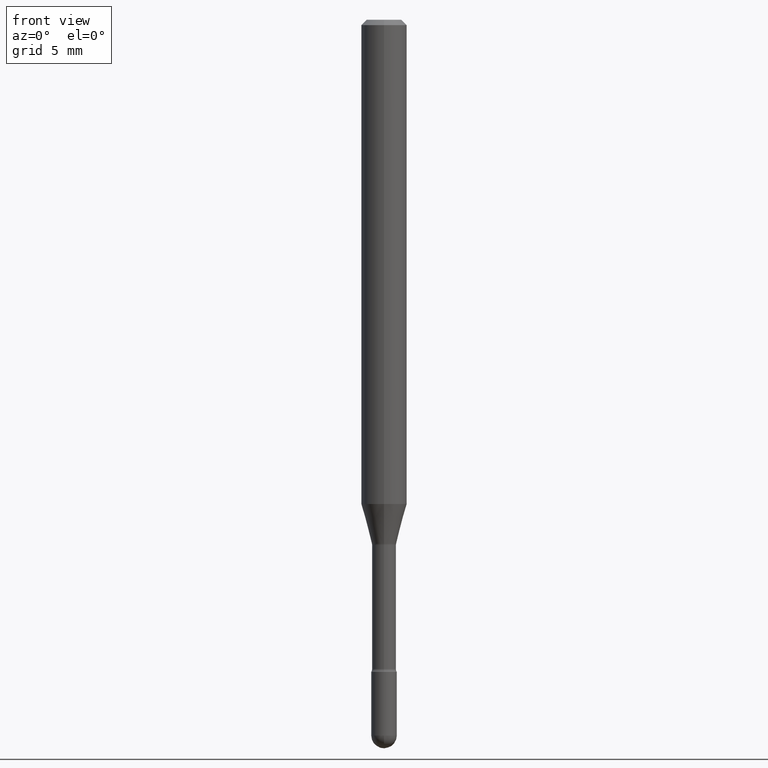
[diagram: clean part render]
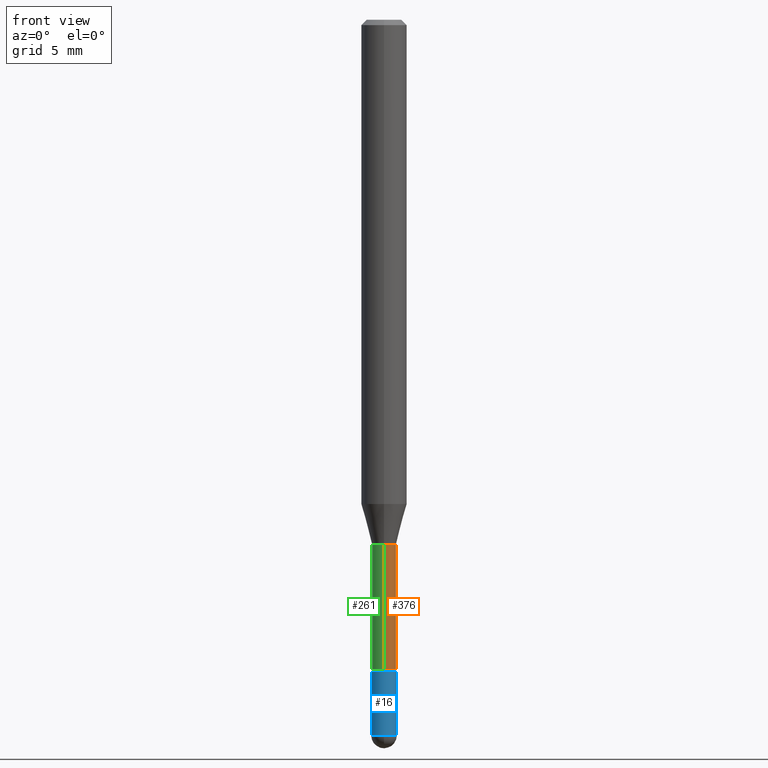
[diagram: same view with three faces highlighted in distinct colors, each labeled with its STEP entity id]
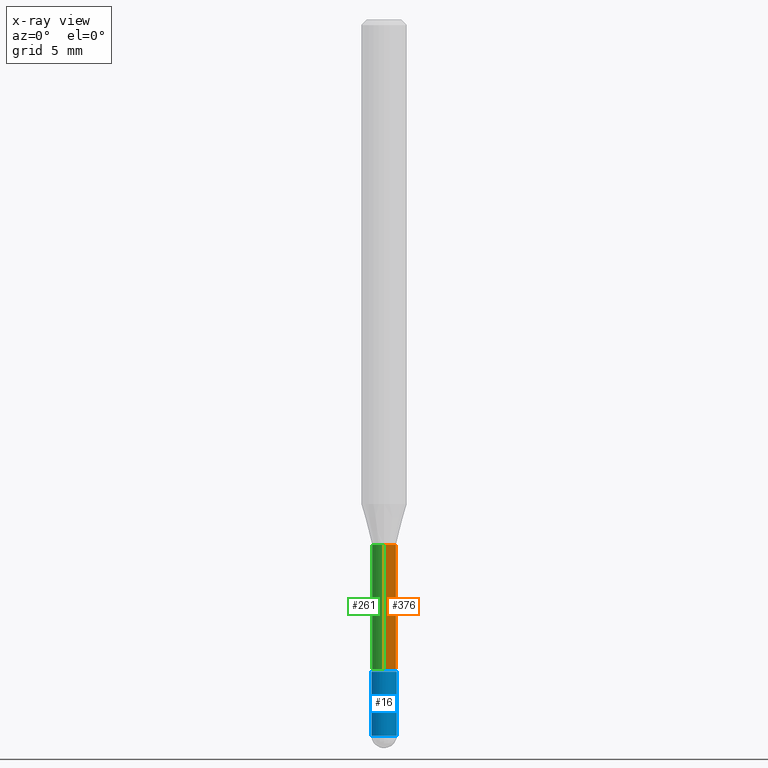
[diagram: x-ray of the same camera — body ghosted, the three highlighted faces saturated]
A machine part, front view with three faces highlighted in distinct colors.
The next image is the same camera in x-ray (body ghosted, the three faces saturated) — at least one of them is partly hidden behind the body in this view.
Their STEP definitions:

[orange] entity #376 — the highlighted cylindrical surface (edge-blend (fillet) strip) has radius 0.8357 mm, axis along (-0, 0, 1).
#6 = ORIENTED_EDGE ( 'NONE', *, *, #410, .F. ) ;
#11 = EDGE_CURVE ( 'NONE', #330, #320, #337, .T. ) ;
#33 = DIRECTION ( 'NONE',  ( -2.445521858214685892E-29, 3.491405365317297324E-15, 1.000000000000000000 ) ) ;
#70 = CARTESIAN_POINT ( 'NONE',  ( -2.297394720958428512E-16, -0.03290000000000502939, -1.441974787463810914 ) ) ;
#72 = ORIENTED_EDGE ( 'NONE', *, *, #230, .F. ) ;
#94 = FACE_OUTER_BOUND ( 'NONE', #340, .T. ) ;
#113 = CARTESIAN_POINT ( 'NONE',  ( -2.297394720958780541E-16, -0.03289999999999998481, 5.929406354101851004E-16 ) ) ;
#119 = DIRECTION ( 'NONE',  ( -6.982962677686265922E-15, -1.000000000000000000, 3.491405365317296141E-15 ) ) ;
#126 = ORIENTED_EDGE ( 'NONE', *, *, #11, .T. ) ;
#135 = ORIENTED_EDGE ( 'NONE', *, *, #243, .T. ) ;
#144 = CARTESIAN_POINT ( 'NONE',  ( -1.169113584055446105E-44, 1.669184350826100908E-30, 4.780733988912460139E-16 ) ) ;
#176 = CARTESIAN_POINT ( 'NONE',  ( 2.337685600651165364E-16, 0.03289999999999496105, -1.441974787463810914 ) ) ;
#193 = AXIS2_PLACEMENT_3D ( 'NONE', #144, #510, #119 ) ;
#195 = VERTEX_POINT ( 'NONE', #176 ) ;
#215 = CARTESIAN_POINT ( 'NONE',  ( 3.526380861737225487E-29, -5.034518509603418208E-15, -1.441974787463810914 ) ) ;
#221 = CARTESIAN_POINT ( 'NONE',  ( -2.297394720958343216E-16, -0.03290000000000618818, -1.782345589506695971 ) ) ;
#230 = EDGE_CURVE ( 'NONE', #403, #195, #481, .T. ) ;
#234 = LINE ( 'NONE', #113, #507 ) ;
#243 = EDGE_CURVE ( 'NONE', #320, #195, #495, .T. ) ;
#268 = DIRECTION ( 'NONE',  ( -2.445521858214685892E-29, 3.491405365317297324E-15, 1.000000000000000000 ) ) ;
#271 = CARTESIAN_POINT ( 'NONE',  ( 4.358765098031164944E-29, -6.222890954053299326E-15, -1.782345589506695971 ) ) ;
#273 = DIRECTION ( 'NONE',  ( -2.445521858214685892E-29, 3.491405365317297324E-15, 1.000000000000000000 ) ) ;
#320 = VERTEX_POINT ( 'NONE', #450 ) ;
#330 = VERTEX_POINT ( 'NONE', #221 ) ;
#337 = CIRCLE ( 'NONE', #407, 0.03289999999999996400 ) ;
#340 = EDGE_LOOP ( 'NONE', ( #126, #135, #72, #6 ) ) ;
#376 = ADVANCED_FACE ( 'NONE', ( #94 ), #535, .T. ) ;
#403 = VERTEX_POINT ( 'NONE', #70 ) ;
#407 = AXIS2_PLACEMENT_3D ( 'NONE', #271, #268, #453 ) ;
#410 = EDGE_CURVE ( 'NONE', #330, #403, #234, .T. ) ;
#414 = CARTESIAN_POINT ( 'NONE',  ( 2.337685600650728039E-16, 0.03289999999999998481, 3.632061623723070753E-16 ) ) ;
#415 = DIRECTION ( 'NONE',  ( -6.982962677686265133E-15, -1.000000000000000000, 0.000000000000000000 ) ) ;
#423 = VECTOR ( 'NONE', #273, 39.37007874015748143 ) ;
#447 = DIRECTION ( 'NONE',  ( -2.445521858214685892E-29, 3.491405365317297324E-15, 1.000000000000000000 ) ) ;
#450 = CARTESIAN_POINT ( 'NONE',  ( 2.412292587905978021E-16, 0.03289999999999374675, -1.782345589506695971 ) ) ;
#453 = DIRECTION ( 'NONE',  ( -6.982962677686265922E-15, -1.000000000000000000, 0.000000000000000000 ) ) ;
#481 = CIRCLE ( 'NONE', #552, 0.03289999999999999869 ) ;
#495 = LINE ( 'NONE', #414, #423 ) ;
#507 = VECTOR ( 'NONE', #33, 39.37007874015748143 ) ;
#510 = DIRECTION ( 'NONE',  ( -2.445521858214685892E-29, 3.491405365317297324E-15, 1.000000000000000000 ) ) ;
#535 = CYLINDRICAL_SURFACE ( 'NONE', #193, 0.03289999999999998481 ) ;
#552 = AXIS2_PLACEMENT_3D ( 'NONE', #215, #447, #415 ) ;

[blue] entity #16 — the highlighted cylindrical surface (edge-blend (fillet) strip) has radius 0.889 mm, axis along (-0, 0, 1).
#16 = ADVANCED_FACE ( 'NONE', ( #224 ), #151, .T. ) ;
#17 = CIRCLE ( 'NONE', #29, 0.03500000000000000333 ) ;
#21 = VERTEX_POINT ( 'NONE', #203 ) ;
#29 = AXIS2_PLACEMENT_3D ( 'NONE', #159, #463, #322 ) ;
#35 = LINE ( 'NONE', #391, #380 ) ;
#44 = ORIENTED_EDGE ( 'NONE', *, *, #156, .F. ) ;
#48 = EDGE_CURVE ( 'NONE', #272, #545, #238, .T. ) ;
#67 = AXIS2_PLACEMENT_3D ( 'NONE', #525, #485, #520 ) ;
#78 = CARTESIAN_POINT ( 'NONE',  ( -0.03500000000000000333, 2.486899575160350887E-16, -1.721627281589217108E-30 ) ) ;
#82 = DIRECTION ( 'NONE',  ( 1.000000000000000000, -6.982962677686276966E-15, 0.000000000000000000 ) ) ;
#83 = EDGE_CURVE ( 'NONE', #532, #21, #35, .T. ) ;
#86 = CARTESIAN_POINT ( 'NONE',  ( 4.805346204153793345E-29, -6.860760830826780393E-15, -1.964999999999999858 ) ) ;
#121 = DIRECTION ( 'NONE',  ( 1.000000000000000000, -6.982962677686265922E-15, 4.876176775795936353E-29 ) ) ;
#151 = CYLINDRICAL_SURFACE ( 'NONE', #431, 0.03500000000000000333 ) ;
#156 = EDGE_CURVE ( 'NONE', #272, #308, #517, .T. ) ;
#159 = CARTESIAN_POINT ( 'NONE',  ( 4.377389163071394665E-29, -6.249751596529231267E-15, -1.790000000000000036 ) ) ;
#162 = EDGE_CURVE ( 'NONE', #545, #532, #493, .T. ) ;
#170 = DIRECTION ( 'NONE',  ( -2.445468806185136597E-29, 3.491481338843145583E-15, 1.000000000000000000 ) ) ;
#173 = CARTESIAN_POINT ( 'NONE',  ( 0.03500000000000000333, -6.799659907397025402E-15, -1.964999999999999858 ) ) ;
#203 = CARTESIAN_POINT ( 'NONE',  ( 0.03500000000000000333, -6.494155290248250444E-15, -1.790000000000000036 ) ) ;
#206 = DIRECTION ( 'NONE',  ( -2.445468806185136877E-29, 3.491481338843145188E-15, 1.000000000000000000 ) ) ;
#224 = FACE_OUTER_BOUND ( 'NONE', #275, .T. ) ;
#231 = VECTOR ( 'NONE', #398, 39.37007874015748143 ) ;
#238 = CIRCLE ( 'NONE', #558, 0.03500000000000000333 ) ;
#272 = VERTEX_POINT ( 'NONE', #406 ) ;
#275 = EDGE_LOOP ( 'NONE', ( #44, #329, #335, #501, #315 ) ) ;
#308 = VERTEX_POINT ( 'NONE', #497 ) ;
#315 = ORIENTED_EDGE ( 'NONE', *, *, #412, .F. ) ;
#322 = DIRECTION ( 'NONE',  ( 1.000000000000000000, -6.982962677686276966E-15, 0.000000000000000000 ) ) ;
#329 = ORIENTED_EDGE ( 'NONE', *, *, #48, .T. ) ;
#335 = ORIENTED_EDGE ( 'NONE', *, *, #162, .T. ) ;
#380 = VECTOR ( 'NONE', #206, 39.37007874015748143 ) ;
#391 = CARTESIAN_POINT ( 'NONE',  ( 0.03500000000000000333, -2.444036937190193250E-16, 1.706661871528577808E-30 ) ) ;
#397 = DIRECTION ( 'NONE',  ( -2.445468806185136597E-29, 3.491481338843145583E-15, 1.000000000000000000 ) ) ;
#398 = DIRECTION ( 'NONE',  ( -2.445468806185136877E-29, 3.491481338843145188E-15, 1.000000000000000000 ) ) ;
#406 = CARTESIAN_POINT ( 'NONE',  ( -0.03500000000000000333, -6.306566256161970939E-15, -1.964999999999999858 ) ) ;
#412 = EDGE_CURVE ( 'NONE', #308, #21, #17, .T. ) ;
#431 = AXIS2_PLACEMENT_3D ( 'NONE', #561, #397, #121 ) ;
#463 = DIRECTION ( 'NONE',  ( -2.445468806185136597E-29, 3.491481338843145583E-15, 1.000000000000000000 ) ) ;
#485 = DIRECTION ( 'NONE',  ( -2.445468806185136597E-29, 3.491481338843145583E-15, 1.000000000000000000 ) ) ;
#493 = CIRCLE ( 'NONE', #67, 0.03500000000000000333 ) ;
#497 = CARTESIAN_POINT ( 'NONE',  ( -0.03500000000000000333, -6.306566256161970939E-15, -1.790000000000000036 ) ) ;
#501 = ORIENTED_EDGE ( 'NONE', *, *, #83, .T. ) ;
#517 = LINE ( 'NONE', #78, #231 ) ;
#520 = DIRECTION ( 'NONE',  ( 1.000000000000000000, -6.982962677686276966E-15, 0.000000000000000000 ) ) ;
#525 = CARTESIAN_POINT ( 'NONE',  ( 4.805346204153793345E-29, -6.860760830826780393E-15, -1.964999999999999858 ) ) ;
#532 = VERTEX_POINT ( 'NONE', #173 ) ;
#545 = VERTEX_POINT ( 'NONE', #566 ) ;
#558 = AXIS2_PLACEMENT_3D ( 'NONE', #86, #170, #82 ) ;
#561 = CARTESIAN_POINT ( 'NONE',  ( 0.000000000000000000, 0.000000000000000000, 0.000000000000000000 ) ) ;
#566 = CARTESIAN_POINT ( 'NONE',  ( -2.486899575159870668E-16, -0.03500000000000687284, -1.964999999999999858 ) ) ;

[green] entity #261 — the highlighted cylindrical surface (edge-blend (fillet) strip) has radius 0.8357 mm, axis along (-0, 0, 1).
#33 = DIRECTION ( 'NONE',  ( -2.445521858214685892E-29, 3.491405365317297324E-15, 1.000000000000000000 ) ) ;
#70 = CARTESIAN_POINT ( 'NONE',  ( -2.297394720958428512E-16, -0.03290000000000502939, -1.441974787463810914 ) ) ;
#96 = DIRECTION ( 'NONE',  ( -6.982962677686265922E-15, -1.000000000000000000, 3.491405365317296141E-15 ) ) ;
#113 = CARTESIAN_POINT ( 'NONE',  ( -2.297394720958780541E-16, -0.03289999999999998481, 5.929406354101851004E-16 ) ) ;
#153 = DIRECTION ( 'NONE',  ( -2.445521858214685892E-29, 3.491405365317297324E-15, 1.000000000000000000 ) ) ;
#176 = CARTESIAN_POINT ( 'NONE',  ( 2.337685600651165364E-16, 0.03289999999999496105, -1.441974787463810914 ) ) ;
#184 = FACE_OUTER_BOUND ( 'NONE', #321, .T. ) ;
#194 = EDGE_CURVE ( 'NONE', #320, #330, #551, .T. ) ;
#195 = VERTEX_POINT ( 'NONE', #176 ) ;
#204 = DIRECTION ( 'NONE',  ( -6.982962677686265922E-15, -1.000000000000000000, 0.000000000000000000 ) ) ;
#221 = CARTESIAN_POINT ( 'NONE',  ( -2.297394720958343216E-16, -0.03290000000000618818, -1.782345589506695971 ) ) ;
#225 = CYLINDRICAL_SURFACE ( 'NONE', #239, 0.03289999999999998481 ) ;
#234 = LINE ( 'NONE', #113, #507 ) ;
#239 = AXIS2_PLACEMENT_3D ( 'NONE', #309, #153, #96 ) ;
#243 = EDGE_CURVE ( 'NONE', #320, #195, #495, .T. ) ;
#246 = ORIENTED_EDGE ( 'NONE', *, *, #479, .F. ) ;
#261 = ADVANCED_FACE ( 'NONE', ( #184 ), #225, .T. ) ;
#273 = DIRECTION ( 'NONE',  ( -2.445521858214685892E-29, 3.491405365317297324E-15, 1.000000000000000000 ) ) ;
#289 = AXIS2_PLACEMENT_3D ( 'NONE', #389, #432, #204 ) ;
#309 = CARTESIAN_POINT ( 'NONE',  ( -1.169113584055446105E-44, 1.669184350826100908E-30, 4.780733988912460139E-16 ) ) ;
#320 = VERTEX_POINT ( 'NONE', #450 ) ;
#321 = EDGE_LOOP ( 'NONE', ( #469, #387, #458, #246 ) ) ;
#330 = VERTEX_POINT ( 'NONE', #221 ) ;
#351 = AXIS2_PLACEMENT_3D ( 'NONE', #504, #516, #378 ) ;
#378 = DIRECTION ( 'NONE',  ( -6.982962677686265133E-15, -1.000000000000000000, 0.000000000000000000 ) ) ;
#387 = ORIENTED_EDGE ( 'NONE', *, *, #194, .T. ) ;
#389 = CARTESIAN_POINT ( 'NONE',  ( 4.358765098031164944E-29, -6.222890954053299326E-15, -1.782345589506695971 ) ) ;
#403 = VERTEX_POINT ( 'NONE', #70 ) ;
#410 = EDGE_CURVE ( 'NONE', #330, #403, #234, .T. ) ;
#414 = CARTESIAN_POINT ( 'NONE',  ( 2.337685600650728039E-16, 0.03289999999999998481, 3.632061623723070753E-16 ) ) ;
#423 = VECTOR ( 'NONE', #273, 39.37007874015748143 ) ;
#432 = DIRECTION ( 'NONE',  ( -2.445521858214685892E-29, 3.491405365317297324E-15, 1.000000000000000000 ) ) ;
#450 = CARTESIAN_POINT ( 'NONE',  ( 2.412292587905978021E-16, 0.03289999999999374675, -1.782345589506695971 ) ) ;
#458 = ORIENTED_EDGE ( 'NONE', *, *, #410, .T. ) ;
#469 = ORIENTED_EDGE ( 'NONE', *, *, #243, .F. ) ;
#479 = EDGE_CURVE ( 'NONE', #195, #403, #500, .T. ) ;
#495 = LINE ( 'NONE', #414, #423 ) ;
#500 = CIRCLE ( 'NONE', #351, 0.03289999999999999869 ) ;
#504 = CARTESIAN_POINT ( 'NONE',  ( 3.526380861737225487E-29, -5.034518509603418208E-15, -1.441974787463810914 ) ) ;
#507 = VECTOR ( 'NONE', #33, 39.37007874015748143 ) ;
#516 = DIRECTION ( 'NONE',  ( -2.445521858214685892E-29, 3.491405365317297324E-15, 1.000000000000000000 ) ) ;
#551 = CIRCLE ( 'NONE', #289, 0.03289999999999996400 ) ;